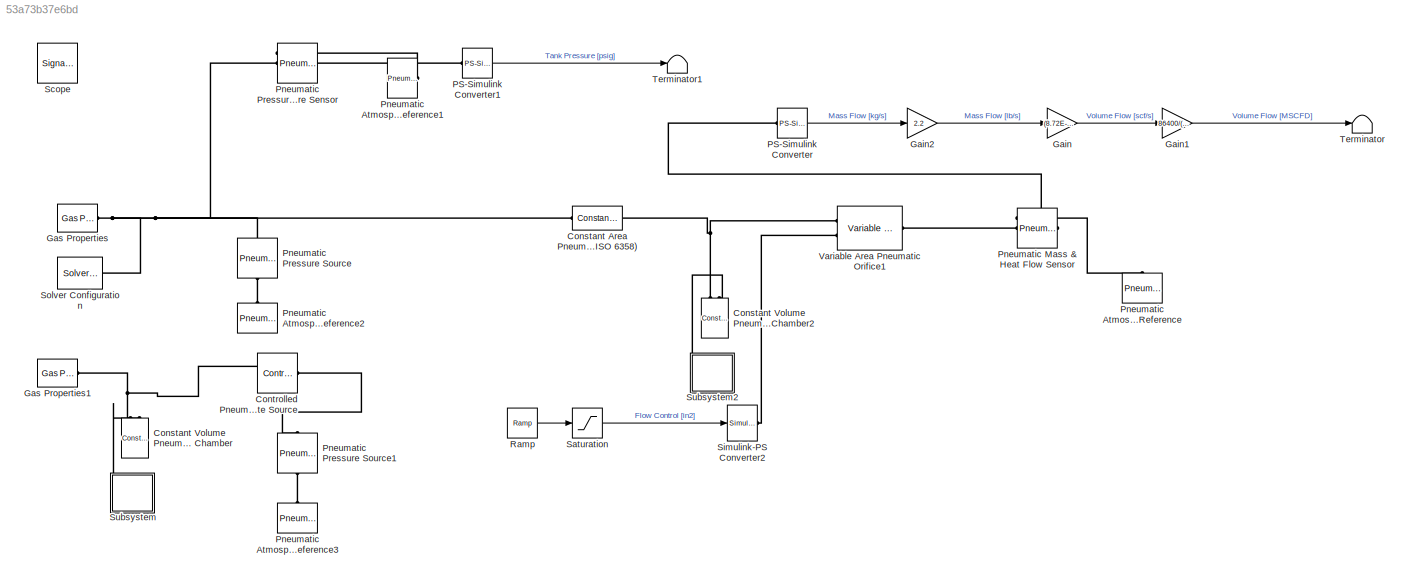
MODEL slx_53a73b37e6bd
KIND model
BLOCK [Reference] Constant Area Pneumatic Orifice (ISO 6358)  REF=fl_lib/Pneumatic/Pneumatic Elements/Constant Area
Pneumatic Orifice
(ISO 6358)
  C_v = 0.6
  C_v_unit = 1
  ClassName = orifice_iso
  ComponentPath = foundation.pneumatic.elements.orifice_iso
  ComponentVariantNames = orifice_iso
  ComponentVariants = foundation.pneumatic.elements.orifice_iso
  G_Log = off
  K_v = 8.5
  K_v_unit = 1
  LocalVarDescs = |G|Q1|Q2|p1|p2|T1|T2
  LocalVarLogging = [0 0 0 0 0 0 0]
  LocalVarNames = |G|Q1|Q2|p1|p2|T1|T2
  Ports = [0, 0, 0, 0, 0, 1, 1]
  Q1_Log = off
  Q2_Log = off
  SchemaVersion = 1
  SourceBlock = fl_lib/Pneumatic/Pneumatic Elements/Constant Area\nPneumatic Orifice\n(ISO 6358)
  SourceFile = foundation.pneumatic.elements.orifice_iso
  SourceType = Constant Area\nPneumatic Orifice\n(ISO 6358)
  T1_Log = off
  T2_Log = off
  T_0 = 293.15
  T_0_unit = K
  area_eff = 40/64
  area_eff_unit = in^2
  crit_pr_ratio = 0.528
  crit_pr_ratio_unit = 1
  or_spec = 2
  or_spec_unit = 1
  p1_Log = off
  p2_Log = off
  pr_ratio_lam = 0.999
  pr_ratio_lam_unit = 1
  rho_0 = 1.185
  rho_0_unit = kg/m^3
  sonic_cond = 1.6
  sonic_cond_unit = l/s/bar
BLOCK [Reference] Constant Volume Pneumatic Chamber  REF=fl_lib/Pneumatic/Pneumatic Elements/Constant Volume
Pneumatic Chamber
  ClassName = chamber
  Commented = on
  ComponentPath = foundation.pneumatic.elements.chamber
  ComponentVariantNames = chamber
  ComponentVariants = foundation.pneumatic.elements.chamber
  LocalVarDescs = |gas_flow|heat_flow|pressure|temperature|gas_temperature|heat_exch_flow
  LocalVarLogging = [0 0 0 0 0 0]
  LocalVarNames = |gas_flow|heat_flow|pressure|temperature|gas_temperature|heat_exch_flow
  Ports = [0, 0, 0, 0, 0, 2]
  SchemaVersion = 1
  SourceBlock = fl_lib/Pneumatic/Pneumatic Elements/Constant Volume\nPneumatic Chamber
  SourceFile = foundation.pneumatic.elements.chamber
  SourceType = Constant Volume\nPneumatic Chamber
  T0 = 293.15
  T0_unit = K
  Volume = 1500
  Volume_unit = ft^3
  gas_flow_Log = off
  gas_temperature_Log = off
  heat_exch_flow_Log = off
  heat_flow_Log = off
  p0 = 5000
  p0_unit = psi
  pressure_Log = off
  temperature_Log = off
BLOCK [Reference] Constant Volume Pneumatic Chamber2  REF=fl_lib/Pneumatic/Pneumatic Elements/Constant Volume
Pneumatic Chamber
  ClassName = chamber
  ComponentPath = foundation.pneumatic.elements.chamber
  ComponentVariantNames = chamber
  ComponentVariants = foundation.pneumatic.elements.chamber
  LocalVarDescs = |gas_flow|heat_flow|pressure|temperature|gas_temperature|heat_exch_flow
  LocalVarLogging = [0 0 0 0 0 0]
  LocalVarNames = |gas_flow|heat_flow|pressure|temperature|gas_temperature|heat_exch_flow
  Ports = [0, 0, 0, 0, 0, 2]
  SchemaVersion = 1
  SourceBlock = fl_lib/Pneumatic/Pneumatic Elements/Constant Volume\nPneumatic Chamber
  SourceFile = foundation.pneumatic.elements.chamber
  SourceType = Constant Volume\nPneumatic Chamber
  T0 = 293.15
  T0_unit = K
  Volume = 10
  Volume_unit = in^3
  gas_flow_Log = off
  gas_temperature_Log = off
  heat_exch_flow_Log = off
  heat_flow_Log = off
  p0 = 5000
  p0_unit = psi
  pressure_Log = off
  temperature_Log = off
BLOCK [Reference] Controlled Pneumatic Flow Rate Source  REF=fl_lib/Pneumatic/Pneumatic Sources/Controlled Pneumatic
Flow Rate Source
  ClassName = controlled_flow
  Commented = on
  ComponentPath = foundation.pneumatic.sources.controlled_flow
  ComponentVariantNames = controlled_flow
  ComponentVariants = foundation.pneumatic.sources.controlled_flow
  LocalVarDescs = |pressure_difference|gas_flow|temperature_difference|heat_flow
  LocalVarLogging = [0 0 0 0]
  LocalVarNames = |pressure_difference|gas_flow|temperature_difference|heat_flow
  Ports = [0, 0, 0, 0, 0, 1, 2]
  SchemaVersion = 1
  SourceBlock = fl_lib/Pneumatic/Pneumatic Sources/Controlled Pneumatic\nFlow Rate Source
  SourceFile = foundation.pneumatic.sources.controlled_flow
  SourceType = Controlled Pneumatic\nFlow Rate Source
  gas_flow_Log = off
  heat_flow_Log = off
  pressure_difference_Log = off
  temperature_difference_Log = off
BLOCK [Gain] Gain
  Gain = (8.72E-2)^-1
  OutDataTypeStr = Inherit: Inherit via internal rule
  ParamDataTypeStr = Inherit: Inherit via internal rule
  SaturateOnIntegerOverflow = off
BLOCK [Gain] Gain1
  Gain = 86400/(1E6)
  OutDataTypeStr = Inherit: Inherit via internal rule
  ParamDataTypeStr = Inherit: Inherit via internal rule
  SaturateOnIntegerOverflow = off
BLOCK [Gain] Gain2
  Gain = 2.2
  OutDataTypeStr = Inherit: Inherit via internal rule
  ParamDataTypeStr = Inherit: Inherit via internal rule
  SaturateOnIntegerOverflow = off
BLOCK [Reference] Gas Properties  REF=fl_lib/Pneumatic/Pneumatic Utilities/Gas Properties
  ClassName = gas_properties
  ComponentPath = foundation.pneumatic.utilities.gas_properties
  ComponentVariantNames = gas_properties
  ComponentVariants = foundation.pneumatic.utilities.gas_properties
  LocalVarLogging = []
  Pa = 101325
  Pa_unit = Pa
  Ports = [0, 0, 0, 0, 0, 0, 1]
  SchemaVersion = 1
  SourceBlock = fl_lib/Pneumatic/Pneumatic Utilities/Gas Properties
  SourceFile = foundation.pneumatic.utilities.gas_properties
  SourceType = Gas Properties
  Ta = 293.15
  Ta_unit = K
  c_p = 1005
  c_p_unit = J/kg/K
  c_v = 717.95
  c_v_unit = J/kg/K
  viscosity = 18.21e-6
  viscosity_unit = s*Pa
BLOCK [Reference] Gas Properties1  REF=fl_lib/Pneumatic/Pneumatic Utilities/Gas Properties
  ClassName = gas_properties
  Commented = on
  ComponentPath = foundation.pneumatic.utilities.gas_properties
  ComponentVariantNames = gas_properties
  ComponentVariants = foundation.pneumatic.utilities.gas_properties
  LocalVarLogging = []
  Pa = 101325
  Pa_unit = Pa
  Ports = [0, 0, 0, 0, 0, 0, 1]
  SchemaVersion = 1
  SourceBlock = fl_lib/Pneumatic/Pneumatic Utilities/Gas Properties
  SourceFile = foundation.pneumatic.utilities.gas_properties
  SourceType = Gas Properties
  Ta = 293.15
  Ta_unit = K
  c_p = 1005
  c_p_unit = J/kg/K
  c_v = 717.95
  c_v_unit = J/kg/K
  viscosity = 18.21e-6
  viscosity_unit = s*Pa
BLOCK [Reference] PS-Simulink Converter  REF=nesl_utility/PS-Simulink
Converter
  AffineConversion = off
  Frequencies = []
  LeftPortType = input
  PhysicalDomain = network_engine_domain
  Ports = [0, 1, 0, 0, 0, 1]
  PseudoPeriodic = off
  RightPortType = output
  SourceBlock = nesl_utility/PS-Simulink\nConverter
  SourceType = PS-Simulink\nConverter
  SubClassName = ps_output
  Unit = kg/s
BLOCK [Reference] PS-Simulink Converter1  REF=nesl_utility/PS-Simulink
Converter
  AffineConversion = off
  Frequencies = []
  LeftPortType = input
  PhysicalDomain = network_engine_domain
  Ports = [0, 1, 0, 0, 0, 1]
  PseudoPeriodic = off
  RightPortType = output
  SourceBlock = nesl_utility/PS-Simulink\nConverter
  SourceType = PS-Simulink\nConverter
  SubClassName = ps_output
  Unit = psi
BLOCK [Reference] Pneumatic Atmospheric Reference  REF=fl_lib/Pneumatic/Pneumatic Elements/Pneumatic
Atmospheric
Reference
  ClassName = atmospheric_reference
  ComponentPath = foundation.pneumatic.elements.atmospheric_reference
  ComponentVariantNames = atmospheric_reference
  ComponentVariants = foundation.pneumatic.elements.atmospheric_reference
  LocalVarDescs = |gas_flow|heat_flow
  LocalVarLogging = [0 0]
  LocalVarNames = |gas_flow|heat_flow
  Ports = [0, 0, 0, 0, 0, 1]
  SchemaVersion = 1
  SourceBlock = fl_lib/Pneumatic/Pneumatic Elements/Pneumatic\nAtmospheric\nReference
  SourceFile = foundation.pneumatic.elements.atmospheric_reference
  SourceType = Pneumatic\nAtmospheric\nReference
  gas_flow_Log = off
  heat_flow_Log = off
BLOCK [Reference] Pneumatic Atmospheric Reference1  REF=fl_lib/Pneumatic/Pneumatic Elements/Pneumatic
Atmospheric
Reference
  ClassName = atmospheric_reference
  ComponentPath = foundation.pneumatic.elements.atmospheric_reference
  ComponentVariantNames = atmospheric_reference
  ComponentVariants = foundation.pneumatic.elements.atmospheric_reference
  LocalVarDescs = |gas_flow|heat_flow
  LocalVarLogging = [0 0]
  LocalVarNames = |gas_flow|heat_flow
  Ports = [0, 0, 0, 0, 0, 1]
  SchemaVersion = 1
  SourceBlock = fl_lib/Pneumatic/Pneumatic Elements/Pneumatic\nAtmospheric\nReference
  SourceFile = foundation.pneumatic.elements.atmospheric_reference
  SourceType = Pneumatic\nAtmospheric\nReference
  gas_flow_Log = off
  heat_flow_Log = off
BLOCK [Reference] Pneumatic Atmospheric Reference2  REF=fl_lib/Pneumatic/Pneumatic Elements/Pneumatic
Atmospheric
Reference
  ClassName = atmospheric_reference
  ComponentPath = foundation.pneumatic.elements.atmospheric_reference
  ComponentVariantNames = atmospheric_reference
  ComponentVariants = foundation.pneumatic.elements.atmospheric_reference
  LocalVarDescs = |gas_flow|heat_flow
  LocalVarLogging = [0 0]
  LocalVarNames = |gas_flow|heat_flow
  Ports = [0, 0, 0, 0, 0, 1]
  SchemaVersion = 1
  SourceBlock = fl_lib/Pneumatic/Pneumatic Elements/Pneumatic\nAtmospheric\nReference
  SourceFile = foundation.pneumatic.elements.atmospheric_reference
  SourceType = Pneumatic\nAtmospheric\nReference
  gas_flow_Log = off
  heat_flow_Log = off
BLOCK [Reference] Pneumatic Atmospheric Reference3  REF=fl_lib/Pneumatic/Pneumatic Elements/Pneumatic
Atmospheric
Reference
  ClassName = atmospheric_reference
  Commented = on
  ComponentPath = foundation.pneumatic.elements.atmospheric_reference
  ComponentVariantNames = atmospheric_reference
  ComponentVariants = foundation.pneumatic.elements.atmospheric_reference
  LocalVarDescs = |gas_flow|heat_flow
  LocalVarLogging = [0 0]
  LocalVarNames = |gas_flow|heat_flow
  Ports = [0, 0, 0, 0, 0, 1]
  SchemaVersion = 1
  SourceBlock = fl_lib/Pneumatic/Pneumatic Elements/Pneumatic\nAtmospheric\nReference
  SourceFile = foundation.pneumatic.elements.atmospheric_reference
  SourceType = Pneumatic\nAtmospheric\nReference
  gas_flow_Log = off
  heat_flow_Log = off
BLOCK [Reference] Pneumatic Mass & Heat Flow Sensor  REF=fl_lib/Pneumatic/Pneumatic Sensors/Pneumatic Mass &
Heat Flow Sensor
  ClassName = mass_heat_flow
  ComponentPath = foundation.pneumatic.sensors.mass_heat_flow
  ComponentVariantNames = mass_heat_flow
  ComponentVariants = foundation.pneumatic.sensors.mass_heat_flow
  LocalVarDescs = |pressure_difference|gas_flow|temperature_difference|heat_flow
  LocalVarLogging = [0 0 0 0]
  LocalVarNames = |pressure_difference|gas_flow|temperature_difference|heat_flow
  Ports = [0, 0, 0, 0, 0, 1, 3]
  SchemaVersion = 1
  SourceBlock = fl_lib/Pneumatic/Pneumatic Sensors/Pneumatic Mass &\nHeat Flow Sensor
  SourceFile = foundation.pneumatic.sensors.mass_heat_flow
  SourceType = Pneumatic Mass &\nHeat Flow Sensor
  gas_flow_Log = off
  heat_flow_Log = off
  pressure_difference_Log = off
  temperature_difference_Log = off
BLOCK [Reference] Pneumatic Pressure & Temperature Sensor  REF=fl_lib/Pneumatic/Pneumatic Sensors/Pneumatic Pressure &
Temperature Sensor
  ClassName = pressure_temperature
  ComponentPath = foundation.pneumatic.sensors.pressure_temperature
  ComponentVariantNames = pressure_temperature
  ComponentVariants = foundation.pneumatic.sensors.pressure_temperature
  LocalVarDescs = |pressure_difference|gas_flow|temperature_difference|heat_flow
  LocalVarLogging = [0 0 0 0]
  LocalVarNames = |pressure_difference|gas_flow|temperature_difference|heat_flow
  Ports = [0, 0, 0, 0, 0, 1, 3]
  SchemaVersion = 1
  SourceBlock = fl_lib/Pneumatic/Pneumatic Sensors/Pneumatic Pressure &\nTemperature Sensor
  SourceFile = foundation.pneumatic.sensors.pressure_temperature
  SourceType = Pneumatic Pressure &\nTemperature Sensor
  gas_flow_Log = off
  heat_flow_Log = off
  pressure_difference_Log = off
  temperature_difference_Log = off
BLOCK [Reference] Pneumatic Pressure Source  REF=fl_lib/Pneumatic/Pneumatic Sources/Pneumatic Pressure
Source
  ClassName = pressure
  ComponentPath = foundation.pneumatic.sources.pressure
  ComponentVariantNames = pressure
  ComponentVariants = foundation.pneumatic.sources.pressure
  LocalVarDescs = |pressure_difference|gas_flow|temperature_difference|heat_flow
  LocalVarLogging = [0 0 0 0]
  LocalVarNames = |pressure_difference|gas_flow|temperature_difference|heat_flow
  Ports = [0, 0, 0, 0, 0, 1, 1]
  SchemaVersion = 1
  SourceBlock = fl_lib/Pneumatic/Pneumatic Sources/Pneumatic Pressure\nSource
  SourceFile = foundation.pneumatic.sources.pressure
  SourceType = Pneumatic Pressure\nSource
  gas_flow_Log = off
  heat_flow_Log = off
  pressure_difference_Log = off
  pressure_difference_reference = 4500
  pressure_difference_reference_unit = psi
  temperature_difference_Log = off
BLOCK [Reference] Pneumatic Pressure Source1  REF=fl_lib/Pneumatic/Pneumatic Sources/Pneumatic Pressure
Source
  ClassName = pressure
  Commented = on
  ComponentPath = foundation.pneumatic.sources.pressure
  ComponentVariantNames = pressure
  ComponentVariants = foundation.pneumatic.sources.pressure
  LocalVarDescs = |pressure_difference|gas_flow|temperature_difference|heat_flow
  LocalVarLogging = [0 0 0 0]
  LocalVarNames = |pressure_difference|gas_flow|temperature_difference|heat_flow
  Ports = [0, 0, 0, 0, 0, 1, 1]
  SchemaVersion = 1
  SourceBlock = fl_lib/Pneumatic/Pneumatic Sources/Pneumatic Pressure\nSource
  SourceFile = foundation.pneumatic.sources.pressure
  SourceType = Pneumatic Pressure\nSource
  gas_flow_Log = off
  heat_flow_Log = off
  pressure_difference_Log = off
  pressure_difference_reference = 4500
  pressure_difference_reference_unit = psi
  temperature_difference_Log = off
BLOCK [Reference] Ramp  REF=simulink/Sources/Ramp
  Ports = [0, 1]
  SourceBlock = simulink/Sources/Ramp
  SourceType = Ramp
  VectorParams1D = on
  X0 = 0
  slope = .5
  start = .1
BLOCK [Saturate] Saturation
  InputPortMap = u0
  LowerLimit = 0
  Ports = [1, 1]
  UpperLimit = 3.14
BLOCK [SignalViewerScope] Scope
  IOType = viewer
  LimitDataPoints = off
  MaxDataPoints = 7500
  NumInputPorts = 3
  Ports = []
  RefreshTime = 0.035000
  ShowDataMarkers = off
  ShowLegends = on
  TimeRange = 5
  YMax = 4725~2.75e-10~5
  YMin = 4275~0~-5
BLOCK [Reference] Simulink-PS Converter2  REF=nesl_utility/Simulink-PS
Converter
  AffineConversion = off
  Frequencies = []
  InputFilterTimeConstant = .001
  InputFiltering = off
  LeftPortType = input
  NoiseDistribution = none
  NoiseParameters = []
  PhysicalDomain = network_engine_domain
  Ports = [1, 0, 0, 0, 0, 0, 1]
  PseudoPeriodic = off
  RightPortType = output
  SimscapeFilterOrder = 1
  SourceBlock = nesl_utility/Simulink-PS\nConverter
  SourceType = Simulink-PS\nConverter
  SubClassName = ps_input
  UdotUserProvided = 1
  Unit = in^2
BLOCK [Reference] Solver Configuration  REF=nesl_utility/Solver
Configuration
  Accelerate = off
  DelaysMemoryBudget = 1024
  DoDC = on
  DoFixedCost = off
  EnableSwitchedLinearOptims = on
  FrequencyDomain = off
  Harmonics = []
  LeftPortType = input
  LinearAlgebra = Sparse
  LocalSolverChoice = NE_BACKWARD_EULER_ADVANCER
  LocalSolverSampleTime = .001
  MaxModeIter = 2
  MaxNonlinIter = 3
  PhysicalDomain = network_engine_domain
  Ports = [0, 0, 0, 0, 0, 0, 1]
  Profile = off
  ResidualTolerance = 1e-9
  RightPortType = generic
  SimulateNoise = off
  SourceBlock = nesl_utility/Solver\nConfiguration
  SourceType = Solver\nConfiguration
  SubClassName = solver
  Tones = []
  UseCCode = off
  UseLocalSampling = off
  UseLocalSolver = off
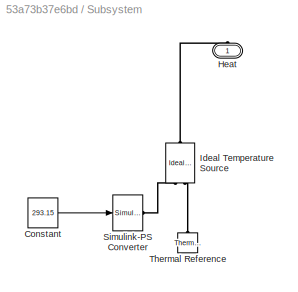
BLOCK [SubSystem] Subsystem
  Commented = on
  FunctionWithSeparateData = off
  MaskHideContents = off
  MinAlgLoopOccurrences = off
  Opaque = off
  Ports = [0, 0, 0, 0, 0, 1]
  PropExecContextOutsideSubsystem = off
  RTWSystemCode = Auto
  RequestExecContextInheritance = off
BLOCK [Constant] Subsystem/Constant
  Value = 293.15
BLOCK [PMIOPort] Subsystem/Heat
  Port = 1
  Side = Left
BLOCK [Reference] Subsystem/Ideal Temperature Source  REF=fl_lib/Thermal/Thermal Sources/Ideal Temperature
Source
  ClassName = temperature
  ComponentPath = foundation.thermal.sources.temperature
  ComponentVariantNames = temperature
  ComponentVariants = foundation.thermal.sources.temperature
  LocalVarDescs = |Q|T
  LocalVarLogging = [0 0]
  LocalVarNames = |Q|T
  Ports = [0, 0, 0, 0, 0, 1, 2]
  Q_Log = off
  SchemaVersion = 1
  SourceBlock = fl_lib/Thermal/Thermal Sources/Ideal Temperature\nSource
  SourceFile = foundation.thermal.sources.temperature
  SourceType = Ideal Temperature\nSource
  T_Log = off
BLOCK [Reference] Subsystem/Simulink-PS Converter  REF=nesl_utility/Simulink-PS
Converter
  AffineConversion = off
  Frequencies = []
  InputFilterTimeConstant = .001
  InputFiltering = off
  LeftPortType = input
  NoiseDistribution = none
  NoiseParameters = []
  PhysicalDomain = network_engine_domain
  Ports = [1, 0, 0, 0, 0, 0, 1]
  PseudoPeriodic = off
  RightPortType = output
  SimscapeFilterOrder = 1
  SourceBlock = nesl_utility/Simulink-PS\nConverter
  SourceType = Simulink-PS\nConverter
  SubClassName = ps_input
  UdotUserProvided = 1
  Unit = K
BLOCK [Reference] Subsystem/Thermal Reference  REF=fl_lib/Thermal/Thermal Elements/Thermal Reference
  ClassName = reference
  ComponentPath = foundation.thermal.elements.reference
  ComponentVariantNames = reference
  ComponentVariants = foundation.thermal.elements.reference
  LocalVarDescs = |Q
  LocalVarLogging = 0
  LocalVarNames = |Q
  Ports = [0, 0, 0, 0, 0, 1]
  Q_Log = off
  SchemaVersion = 1
  SourceBlock = fl_lib/Thermal/Thermal Elements/Thermal Reference
  SourceFile = foundation.thermal.elements.reference
  SourceType = Thermal Reference
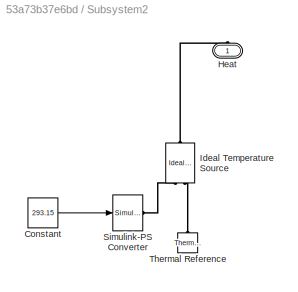
BLOCK [SubSystem] Subsystem2
  FunctionWithSeparateData = off
  MaskHideContents = off
  MinAlgLoopOccurrences = off
  Opaque = off
  Ports = [0, 0, 0, 0, 0, 1]
  PropExecContextOutsideSubsystem = off
  RTWSystemCode = Auto
  RequestExecContextInheritance = off
BLOCK [Constant] Subsystem2/Constant
  Value = 293.15
BLOCK [PMIOPort] Subsystem2/Heat
  Port = 1
  Side = Left
BLOCK [Reference] Subsystem2/Ideal Temperature Source  REF=fl_lib/Thermal/Thermal Sources/Ideal Temperature
Source
  ClassName = temperature
  ComponentPath = foundation.thermal.sources.temperature
  ComponentVariantNames = temperature
  ComponentVariants = foundation.thermal.sources.temperature
  LocalVarDescs = |Q|T
  LocalVarLogging = [0 0]
  LocalVarNames = |Q|T
  Ports = [0, 0, 0, 0, 0, 1, 2]
  Q_Log = off
  SchemaVersion = 1
  SourceBlock = fl_lib/Thermal/Thermal Sources/Ideal Temperature\nSource
  SourceFile = foundation.thermal.sources.temperature
  SourceType = Ideal Temperature\nSource
  T_Log = off
BLOCK [Reference] Subsystem2/Simulink-PS Converter  REF=nesl_utility/Simulink-PS
Converter
  AffineConversion = off
  Frequencies = []
  InputFilterTimeConstant = .001
  InputFiltering = off
  LeftPortType = input
  NoiseDistribution = none
  NoiseParameters = []
  PhysicalDomain = network_engine_domain
  Ports = [1, 0, 0, 0, 0, 0, 1]
  PseudoPeriodic = off
  RightPortType = output
  SimscapeFilterOrder = 1
  SourceBlock = nesl_utility/Simulink-PS\nConverter
  SourceType = Simulink-PS\nConverter
  SubClassName = ps_input
  UdotUserProvided = 1
  Unit = K
BLOCK [Reference] Subsystem2/Thermal Reference  REF=fl_lib/Thermal/Thermal Elements/Thermal Reference
  ClassName = reference
  ComponentPath = foundation.thermal.elements.reference
  ComponentVariantNames = reference
  ComponentVariants = foundation.thermal.elements.reference
  LocalVarDescs = |Q
  LocalVarLogging = 0
  LocalVarNames = |Q
  Ports = [0, 0, 0, 0, 0, 1]
  Q_Log = off
  SchemaVersion = 1
  SourceBlock = fl_lib/Thermal/Thermal Elements/Thermal Reference
  SourceFile = foundation.thermal.elements.reference
  SourceType = Thermal Reference
BLOCK [Terminator] Terminator
BLOCK [Terminator] Terminator1
BLOCK [Reference] Variable Area Pneumatic Orifice1  REF=fl_lib/Pneumatic/Pneumatic Elements/Variable Area
Pneumatic Orifice
  Area0 = 1E-20
  Area0_unit = in^2
  Cd = 0.82
  Cd_unit = 1
  ClassName = variable_orifice
  ComponentPath = foundation.pneumatic.elements.variable_orifice
  ComponentVariantNames = variable_orifice
  ComponentVariants = foundation.pneumatic.elements.variable_orifice
  G_Log = off
  LocalVarDescs = |G|Q1|Q2|p1|p2|T1|T2
  LocalVarLogging = [0 0 0 0 0 0 0]
  LocalVarNames = |G|Q1|Q2|p1|p2|T1|T2
  Ports = [0, 0, 0, 0, 0, 2, 1]
  Q1_Log = off
  Q2_Log = off
  SchemaVersion = 1
  SourceBlock = fl_lib/Pneumatic/Pneumatic Elements/Variable Area\nPneumatic Orifice
  SourceFile = foundation.pneumatic.elements.variable_orifice
  SourceType = Variable Area\nPneumatic Orifice
  T1_Log = off
  T2_Log = off
  p1_Log = off
  p2_Log = off
LINE Gain1:1 -> Terminator:1
LINE Gain2:1 -> Gain:1
LINE Gain:1 -> Gain1:1
LINE PS-Simulink Converter1:1 -> Terminator1:1
LINE PS-Simulink Converter:1 -> Gain2:1
LINE Ramp:1 -> Saturation:1
LINE Saturation:1 -> Simulink-PS Converter2:1
LINE Subsystem/Constant:1 -> Subsystem/Simulink-PS Converter:1
LINE Subsystem2/Constant:1 -> Subsystem2/Simulink-PS Converter:1
PNET net1: Constant Area Pneumatic Orifice (ISO 6358):LConn1 -- Gas Properties:RConn1 -- Pneumatic Pressure & Temperature Sensor:LConn1 -- Pneumatic Pressure Source:LConn1 -- Solver Configuration:RConn1
PNET net2: Constant Area Pneumatic Orifice (ISO 6358):RConn1 -- Constant Volume Pneumatic Chamber2:LConn1 -- Variable Area Pneumatic Orifice1:LConn1
PLINE Constant Volume Pneumatic Chamber2:LConn2 -- Subsystem2:LConn1
PNET net3: Constant Volume Pneumatic Chamber:LConn1 -- Controlled Pneumatic Flow Rate Source:RConn1 -- Gas Properties1:RConn1
PLINE Constant Volume Pneumatic Chamber:LConn2 -- Subsystem:LConn1
PLINE Controlled Pneumatic Flow Rate Source:LConn1 -- Pneumatic Pressure Source1:LConn1
PLINE PS-Simulink Converter1:LConn1 -- Pneumatic Pressure & Temperature Sensor:RConn2
PLINE PS-Simulink Converter:LConn1 -- Pneumatic Mass & Heat Flow Sensor:RConn2
PLINE Pneumatic Atmospheric Reference1:LConn1 -- Pneumatic Pressure & Temperature Sensor:RConn1
PLINE Pneumatic Atmospheric Reference2:LConn1 -- Pneumatic Pressure Source:RConn1
PLINE Pneumatic Atmospheric Reference3:LConn1 -- Pneumatic Pressure Source1:RConn1
PLINE Pneumatic Atmospheric Reference:LConn1 -- Pneumatic Mass & Heat Flow Sensor:RConn1
PLINE Pneumatic Mass & Heat Flow Sensor:LConn1 -- Variable Area Pneumatic Orifice1:RConn1
PLINE Simulink-PS Converter2:RConn1 -- Variable Area Pneumatic Orifice1:LConn2
PLINE Subsystem/Heat:RConn1 -- Subsystem/Ideal Temperature Source:LConn1
PLINE Subsystem/Ideal Temperature Source:RConn1 -- Subsystem/Simulink-PS Converter:RConn1
PLINE Subsystem/Ideal Temperature Source:RConn2 -- Subsystem/Thermal Reference:LConn1
PLINE Subsystem2/Heat:RConn1 -- Subsystem2/Ideal Temperature Source:LConn1
PLINE Subsystem2/Ideal Temperature Source:RConn1 -- Subsystem2/Simulink-PS Converter:RConn1
PLINE Subsystem2/Ideal Temperature Source:RConn2 -- Subsystem2/Thermal Reference:LConn1
note: PNET lines group multi-terminal physical nets as a canonical sorted terminal list (undirected conserving connections); 2-terminal nets keep the pairwise PLINE form
